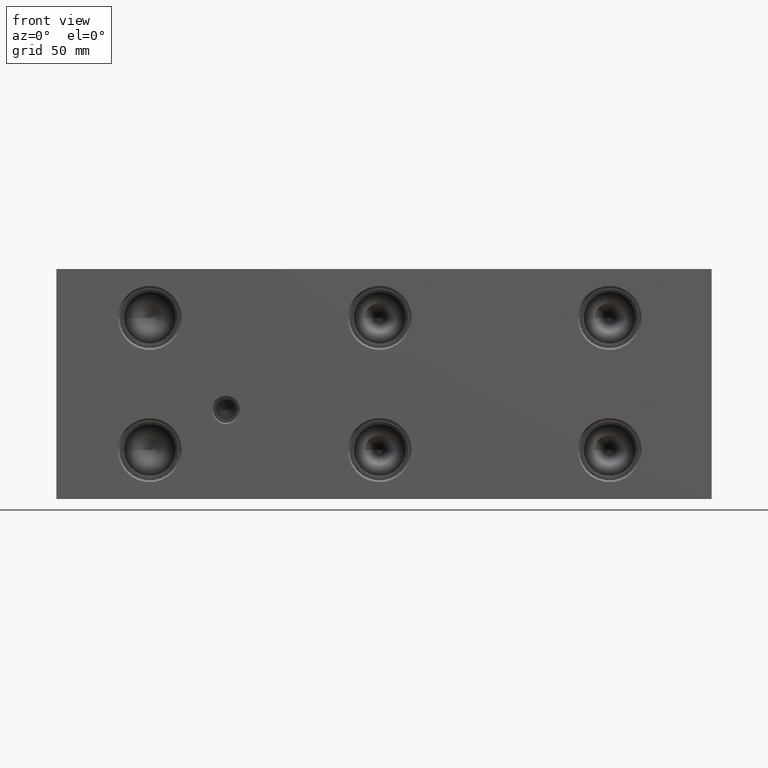
[diagram: clean part render]
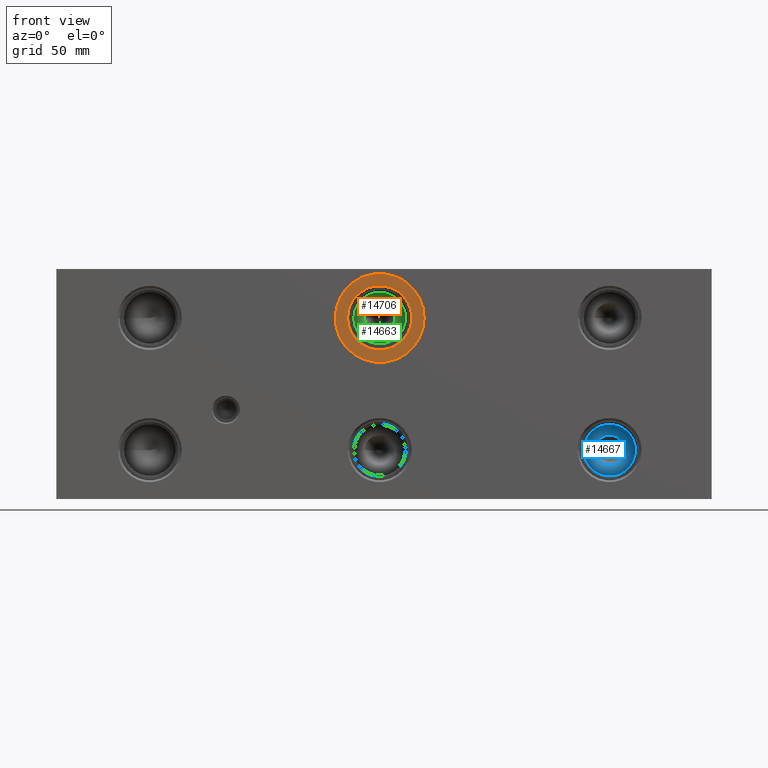
[diagram: same view with three faces highlighted in distinct colors, each labeled with its STEP entity id]
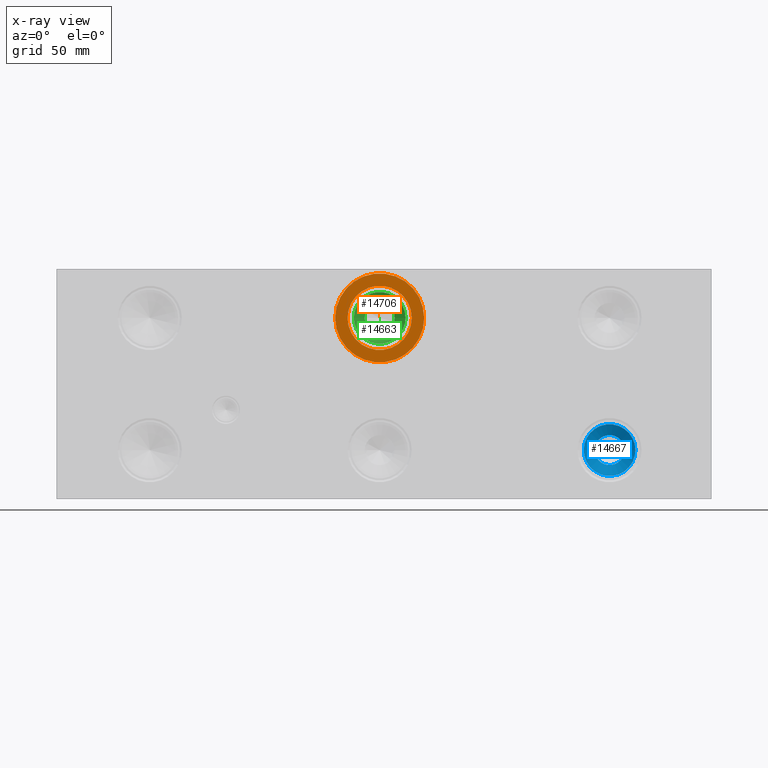
[diagram: x-ray of the same camera — body ghosted, the three highlighted faces saturated]
A machine part, front view with three faces highlighted in distinct colors.
The next image is the same camera in x-ray (body ghosted, the three faces saturated) — at least one of them is partly hidden behind the body in this view.
Their STEP definitions:

[orange] entity #14706 — the highlighted planar face has unit normal (0, -1, 0).
#398=CIRCLE('',#15500,24.5618);
#399=CIRCLE('',#15501,24.5618);
#400=CIRCLE('',#15502,17.7546);
#674=FACE_BOUND('',#2786,.T.);
#1931=FACE_OUTER_BOUND('',#2785,.T.);
#2785=EDGE_LOOP('',(#12519,#12520));
#2786=EDGE_LOOP('',(#12521));
#6739=VERTEX_POINT('',#25090);
#6740=VERTEX_POINT('',#25091);
#6741=VERTEX_POINT('',#25094);
#8732=EDGE_CURVE('',#6739,#6740,#398,.T.);
#8733=EDGE_CURVE('',#6740,#6739,#399,.T.);
#8734=EDGE_CURVE('',#6741,#6741,#400,.T.);
#12519=ORIENTED_EDGE('',*,*,#8732,.T.);
#12520=ORIENTED_EDGE('',*,*,#8733,.T.);
#12521=ORIENTED_EDGE('',*,*,#8734,.F.);
#13511=PLANE('',#15499);
#14706=ADVANCED_FACE('',(#1931,#674),#13511,.T.);
#15499=AXIS2_PLACEMENT_3D('',#25089,#18335,#18336);
#15500=AXIS2_PLACEMENT_3D('',#25092,#18337,#18338);
#15501=AXIS2_PLACEMENT_3D('',#25093,#18339,#18340);
#15502=AXIS2_PLACEMENT_3D('',#25095,#18341,#18342);
#18335=DIRECTION('center_axis',(0.,-1.,0.));
#18336=DIRECTION('ref_axis',(1.,0.,0.));
#18337=DIRECTION('center_axis',(0.,-1.,0.));
#18338=DIRECTION('ref_axis',(1.,0.,0.));
#18339=DIRECTION('center_axis',(0.,-1.,0.));
#18340=DIRECTION('ref_axis',(1.,0.,0.));
#18341=DIRECTION('center_axis',(0.,-1.,0.));
#18342=DIRECTION('ref_axis',(1.,0.,0.));
#25089=CARTESIAN_POINT('Origin',(178.5874,0.7874,99.9998));
#25090=CARTESIAN_POINT('',(203.1492,0.7874,99.9998));
#25091=CARTESIAN_POINT('',(154.0256,0.7874,99.9998));
#25092=CARTESIAN_POINT('Origin',(178.5874,0.7874,99.9998));
#25093=CARTESIAN_POINT('Origin',(178.5874,0.7874,99.9998));
#25094=CARTESIAN_POINT('',(160.8328,0.7874,99.9998));
#25095=CARTESIAN_POINT('Origin',(178.5874,0.7874,99.9998));

[blue] entity #14667 — the highlighted conical surface has half-angle 60 deg.
#148=CONICAL_SURFACE('',#15405,7.14375,1.0471975511966);
#343=CIRCLE('',#15406,14.2875);
#344=CIRCLE('',#15407,8.29239320143379);
#345=CIRCLE('',#15408,14.2875);
#1892=FACE_OUTER_BOUND('',#2741,.T.);
#2741=EDGE_LOOP('',(#12341,#12342,#12343,#12344,#12345));
#4121=LINE('',#24909,#5420);
#5420=VECTOR('',#18117,7.14375);
#6682=VERTEX_POINT('',#24905);
#6683=VERTEX_POINT('',#24906);
#6684=VERTEX_POINT('',#24908);
#8643=EDGE_CURVE('',#6682,#6683,#343,.T.);
#8644=EDGE_CURVE('',#6683,#6684,#4121,.T.);
#8645=EDGE_CURVE('',#6684,#6684,#344,.T.);
#8646=EDGE_CURVE('',#6683,#6682,#345,.T.);
#12341=ORIENTED_EDGE('',*,*,#8643,.T.);
#12342=ORIENTED_EDGE('',*,*,#8644,.T.);
#12343=ORIENTED_EDGE('',*,*,#8645,.F.);
#12344=ORIENTED_EDGE('',*,*,#8644,.F.);
#12345=ORIENTED_EDGE('',*,*,#8646,.T.);
#14667=ADVANCED_FACE('',(#1892),#148,.F.);
#15405=AXIS2_PLACEMENT_3D('',#24904,#18113,#18114);
#15406=AXIS2_PLACEMENT_3D('',#24907,#18115,#18116);
#15407=AXIS2_PLACEMENT_3D('',#24910,#18118,#18119);
#15408=AXIS2_PLACEMENT_3D('',#24911,#18120,#18121);
#18113=DIRECTION('center_axis',(0.,-1.,0.));
#18114=DIRECTION('ref_axis',(1.,0.,0.));
#18115=DIRECTION('center_axis',(0.,-1.,0.));
#18116=DIRECTION('ref_axis',(1.,0.,0.));
#18117=DIRECTION('',(0.866025403784438,0.5,1.06057523872491E-16));
#18118=DIRECTION('center_axis',(0.,-1.,0.));
#18119=DIRECTION('ref_axis',(1.,0.,0.));
#18120=DIRECTION('center_axis',(0.,-1.,0.));
#18121=DIRECTION('ref_axis',(1.,0.,0.));
#24904=CARTESIAN_POINT('Origin',(305.5874,36.7715359855234,26.9748));
#24905=CARTESIAN_POINT('',(319.8749,32.64709,26.9748));
#24906=CARTESIAN_POINT('',(291.2999,32.64709,26.9748));
#24907=CARTESIAN_POINT('Origin',(305.5874,32.64709,26.9748));
#24908=CARTESIAN_POINT('',(297.295006798566,36.1083665239728,26.9748));
#24909=CARTESIAN_POINT('',(298.44365,36.7715359855234,26.9748));
#24910=CARTESIAN_POINT('Origin',(305.5874,36.1083665239728,26.9748));
#24911=CARTESIAN_POINT('Origin',(305.5874,32.64709,26.9748));

[green] entity #14663 — the highlighted conical surface has half-angle 60 deg.
#146=CONICAL_SURFACE('',#15393,7.14375,1.0471975511966);
#335=CIRCLE('',#15394,14.2875);
#336=CIRCLE('',#15395,8.29239320143379);
#337=CIRCLE('',#15396,14.2875);
#1888=FACE_OUTER_BOUND('',#2737,.T.);
#2737=EDGE_LOOP('',(#12321,#12322,#12323,#12324,#12325));
#4117=LINE('',#24885,#5416);
#5416=VECTOR('',#18089,7.14375);
#6674=VERTEX_POINT('',#24881);
#6675=VERTEX_POINT('',#24882);
#6676=VERTEX_POINT('',#24884);
#8631=EDGE_CURVE('',#6674,#6675,#335,.T.);
#8632=EDGE_CURVE('',#6675,#6676,#4117,.T.);
#8633=EDGE_CURVE('',#6676,#6676,#336,.T.);
#8634=EDGE_CURVE('',#6675,#6674,#337,.T.);
#12321=ORIENTED_EDGE('',*,*,#8631,.T.);
#12322=ORIENTED_EDGE('',*,*,#8632,.T.);
#12323=ORIENTED_EDGE('',*,*,#8633,.F.);
#12324=ORIENTED_EDGE('',*,*,#8632,.F.);
#12325=ORIENTED_EDGE('',*,*,#8634,.T.);
#14663=ADVANCED_FACE('',(#1888),#146,.F.);
#15393=AXIS2_PLACEMENT_3D('',#24880,#18085,#18086);
#15394=AXIS2_PLACEMENT_3D('',#24883,#18087,#18088);
#15395=AXIS2_PLACEMENT_3D('',#24886,#18090,#18091);
#15396=AXIS2_PLACEMENT_3D('',#24887,#18092,#18093);
#18085=DIRECTION('center_axis',(0.,-1.,0.));
#18086=DIRECTION('ref_axis',(1.,0.,0.));
#18087=DIRECTION('center_axis',(0.,-1.,0.));
#18088=DIRECTION('ref_axis',(1.,0.,0.));
#18089=DIRECTION('',(0.866025403784438,0.5,1.06057523872491E-16));
#18090=DIRECTION('center_axis',(0.,-1.,0.));
#18091=DIRECTION('ref_axis',(1.,0.,0.));
#18092=DIRECTION('center_axis',(0.,-1.,0.));
#18093=DIRECTION('ref_axis',(1.,0.,0.));
#24880=CARTESIAN_POINT('Origin',(178.5874,36.7715359855234,99.9998));
#24881=CARTESIAN_POINT('',(192.8749,32.64709,99.9998));
#24882=CARTESIAN_POINT('',(164.2999,32.64709,99.9998));
#24883=CARTESIAN_POINT('Origin',(178.5874,32.64709,99.9998));
#24884=CARTESIAN_POINT('',(170.295006798566,36.1083665239728,99.9998));
#24885=CARTESIAN_POINT('',(171.44365,36.7715359855234,99.9998));
#24886=CARTESIAN_POINT('Origin',(178.5874,36.1083665239728,99.9998));
#24887=CARTESIAN_POINT('Origin',(178.5874,32.64709,99.9998));